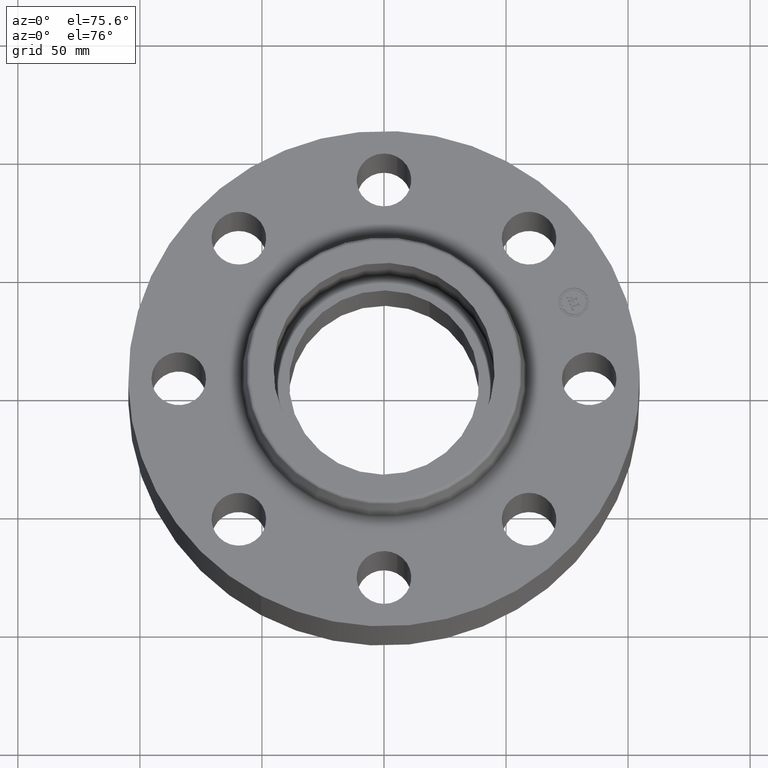
[diagram: clean part render]
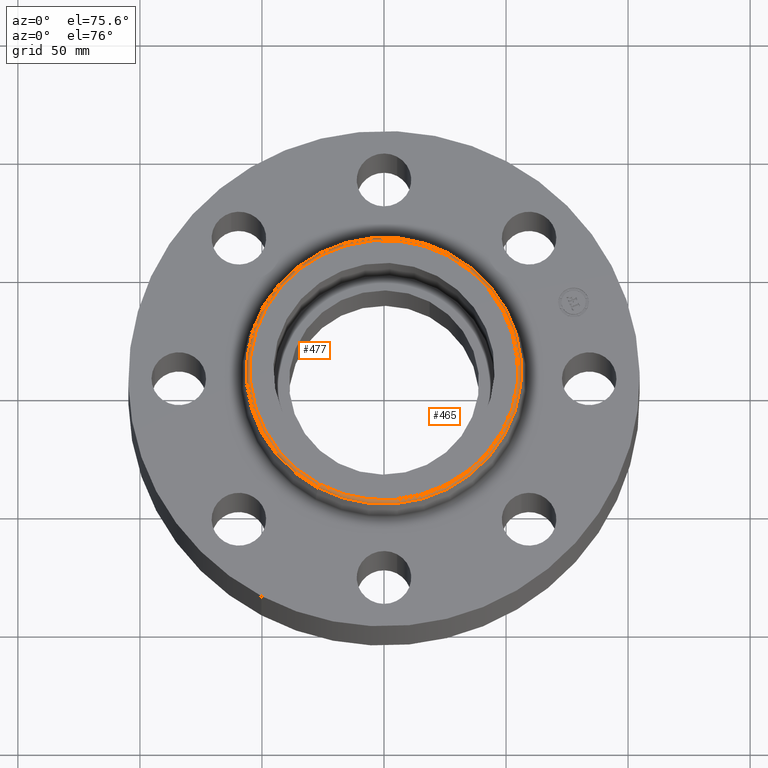
[diagram: same view with one multi-face feature highlighted, each face labeled with its STEP entity id]
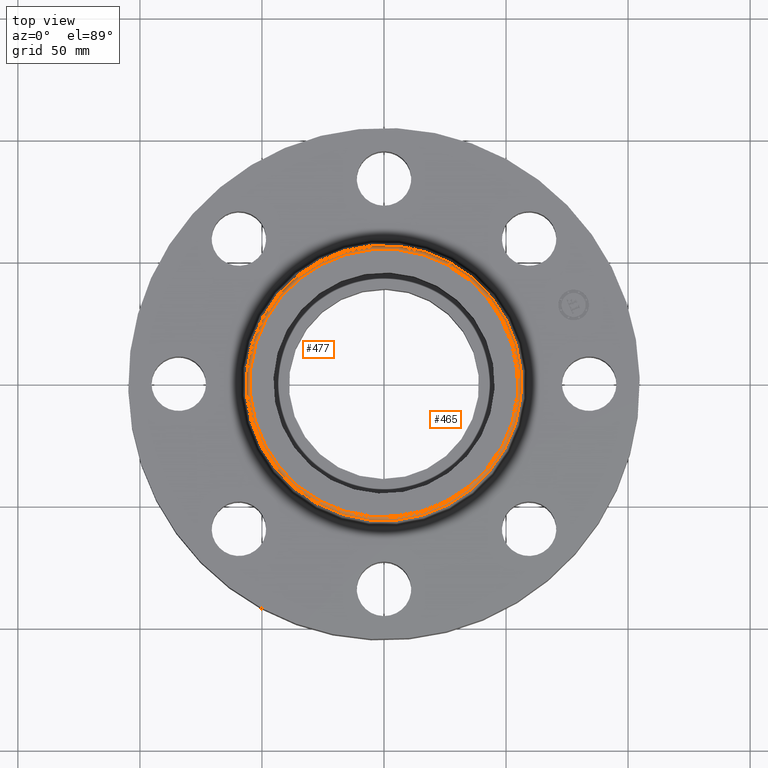
[diagram: same view with one multi-face feature highlighted, each face labeled with its STEP entity id]
A machine part, auxiliary view. The highlighted faces form ONE feature: a constant-radius fillet chain: 2 tangent blend faces with common blend radius 1.524 mm. The faces share edges in the B-rep.
A second angle (top view) of the same feature is appended — it is thin or edge-on in the first view.
Their STEP definitions:
[1] entity #465 (Torus):
#406=AXIS2_PLACEMENT_3D('Circle Axis2P3D',#404,#405,$) ;
#438=AXIS2_PLACEMENT_3D('Torus Axis2P3D',#435,#436,#437) ;
#442=AXIS2_PLACEMENT_3D('Circle Axis2P3D',#440,#441,$) ;
#449=AXIS2_PLACEMENT_3D('Circle Axis2P3D',#447,#448,$) ;
#456=AXIS2_PLACEMENT_3D('Circle Axis2P3D',#454,#455,$) ;
#401=CARTESIAN_POINT('Vertex',(1.06432439756,1.94823274165,1.76041889067)) ;
#404=CARTESIAN_POINT('Axis2P3D Location',(0.,0.,1.76041889067)) ;
#408=CARTESIAN_POINT('Vertex',(-1.06432439756,-1.94823274165,1.76041889067)) ;
#435=CARTESIAN_POINT('Axis2P3D Location',(0.,0.,1.75000000001)) ;
#440=CARTESIAN_POINT('Axis2P3D Location',(1.03599587831,1.896377735,1.75000000001)) ;
#444=CARTESIAN_POINT('Vertex',(1.03599587831,1.896377735,1.81000000001)) ;
#447=CARTESIAN_POINT('Axis2P3D Location',(0.,0.,1.81000000001)) ;
#451=CARTESIAN_POINT('Vertex',(-1.03599587831,-1.896377735,1.81000000001)) ;
#454=CARTESIAN_POINT('Axis2P3D Location',(-1.03599587831,-1.896377735,1.75000000001)) ;
#405=DIRECTION('Axis2P3D Direction',(0.,0.,-0.0393700787402)) ;
#436=DIRECTION('Axis2P3D Direction',(0.,0.,-0.0393700787402)) ;
#437=DIRECTION('Axis2P3D XDirection',(-0.0188750212049,-0.0345504945626,0.)) ;
#441=DIRECTION('Axis2P3D Direction',(-0.0345504945626,0.0188750212049,0.)) ;
#448=DIRECTION('Axis2P3D Direction',(0.,0.,-0.0393700787402)) ;
#455=DIRECTION('Axis2P3D Direction',(0.0345504945626,-0.0188750212049,0.)) ;
#460=ORIENTED_EDGE('',*,*,#410,.F.) ;
#461=ORIENTED_EDGE('',*,*,#446,.T.) ;
#462=ORIENTED_EDGE('',*,*,#453,.T.) ;
#463=ORIENTED_EDGE('',*,*,#458,.F.) ;
#465=ADVANCED_FACE('PartBody',(#464),#439,.T.) ;
#407=CIRCLE('generated circle',#406,2.21999937812) ;
#443=CIRCLE('generated circle',#442,0.0600000000002) ;
#450=CIRCLE('generated circle',#449,2.16091091294) ;
#457=CIRCLE('generated circle',#456,0.0600000000002) ;
#439=TOROIDAL_SURFACE('homeo Torus',#438,2.16091091294,0.0600000000002) ;
#410=EDGE_CURVE('',#402,#409,#407,.T.) ;
#446=EDGE_CURVE('',#402,#445,#443,.F.) ;
#453=EDGE_CURVE('',#445,#452,#450,.T.) ;
#458=EDGE_CURVE('',#409,#452,#457,.F.) ;
#459=EDGE_LOOP('',(#460,#461,#462,#463)) ;
#464=FACE_OUTER_BOUND('',#459,.T.) ;
#402=VERTEX_POINT('',#401) ;
#409=VERTEX_POINT('',#408) ;
#445=VERTEX_POINT('',#444) ;
#452=VERTEX_POINT('',#451) ;
[2] entity #477 (Torus):
#425=AXIS2_PLACEMENT_3D('Circle Axis2P3D',#423,#424,$) ;
#438=AXIS2_PLACEMENT_3D('Torus Axis2P3D',#435,#436,#437) ;
#442=AXIS2_PLACEMENT_3D('Circle Axis2P3D',#440,#441,$) ;
#456=AXIS2_PLACEMENT_3D('Circle Axis2P3D',#454,#455,$) ;
#468=AXIS2_PLACEMENT_3D('Circle Axis2P3D',#466,#467,$) ;
#401=CARTESIAN_POINT('Vertex',(1.06432439756,1.94823274165,1.76041889067)) ;
#408=CARTESIAN_POINT('Vertex',(-1.06432439756,-1.94823274165,1.76041889067)) ;
#423=CARTESIAN_POINT('Axis2P3D Location',(0.,0.,1.76041889067)) ;
#435=CARTESIAN_POINT('Axis2P3D Location',(0.,0.,1.75000000001)) ;
#440=CARTESIAN_POINT('Axis2P3D Location',(1.03599587831,1.896377735,1.75000000001)) ;
#444=CARTESIAN_POINT('Vertex',(1.03599587831,1.896377735,1.81000000001)) ;
#451=CARTESIAN_POINT('Vertex',(-1.03599587831,-1.896377735,1.81000000001)) ;
#454=CARTESIAN_POINT('Axis2P3D Location',(-1.03599587831,-1.896377735,1.75000000001)) ;
#466=CARTESIAN_POINT('Axis2P3D Location',(0.,0.,1.81000000001)) ;
#424=DIRECTION('Axis2P3D Direction',(0.,0.,-0.0393700787402)) ;
#436=DIRECTION('Axis2P3D Direction',(0.,0.,-0.0393700787402)) ;
#437=DIRECTION('Axis2P3D XDirection',(-0.0188750212049,-0.0345504945626,0.)) ;
#441=DIRECTION('Axis2P3D Direction',(-0.0345504945626,0.0188750212049,0.)) ;
#455=DIRECTION('Axis2P3D Direction',(0.0345504945626,-0.0188750212049,0.)) ;
#467=DIRECTION('Axis2P3D Direction',(0.,0.,-0.0393700787402)) ;
#472=ORIENTED_EDGE('',*,*,#427,.F.) ;
#473=ORIENTED_EDGE('',*,*,#458,.T.) ;
#474=ORIENTED_EDGE('',*,*,#470,.T.) ;
#475=ORIENTED_EDGE('',*,*,#446,.F.) ;
#477=ADVANCED_FACE('PartBody',(#476),#439,.T.) ;
#426=CIRCLE('generated circle',#425,2.21999937812) ;
#443=CIRCLE('generated circle',#442,0.0600000000002) ;
#457=CIRCLE('generated circle',#456,0.0600000000002) ;
#469=CIRCLE('generated circle',#468,2.16091091294) ;
#439=TOROIDAL_SURFACE('homeo Torus',#438,2.16091091294,0.0600000000002) ;
#427=EDGE_CURVE('',#409,#402,#426,.T.) ;
#446=EDGE_CURVE('',#402,#445,#443,.F.) ;
#458=EDGE_CURVE('',#409,#452,#457,.F.) ;
#470=EDGE_CURVE('',#452,#445,#469,.T.) ;
#471=EDGE_LOOP('',(#472,#473,#474,#475)) ;
#476=FACE_OUTER_BOUND('',#471,.T.) ;
#402=VERTEX_POINT('',#401) ;
#409=VERTEX_POINT('',#408) ;
#445=VERTEX_POINT('',#444) ;
#452=VERTEX_POINT('',#451) ;